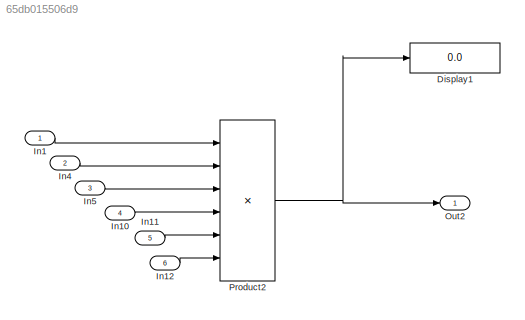
MODEL slx_65db015506d9
KIND model
CONFIG AbsTol = auto
CONFIG EnableMultiTasking = on
CONFIG FixedStep = 0.1
CONFIG MaxStep = auto
CONFIG MinStep = auto
CONFIG RelTol = 1e-3
CONFIG SampleTimeConstraint = Unconstrained
CONFIG Solver = FixedStepAuto
CONFIG SolverName = FixedStepAuto
CONFIG StartTime = 0.0
CONFIG StopTime = 10.0
WORKSPACE source: MAT-file member
WORKSPACE lustrec_slx_eps = 100
BLOCK [Display] Display1
  Decimation = 1
  Ports = [1]
BLOCK [Inport] In1
  IconDisplay = Port number
  OutDataTypeStr = double
  OutMax = 1.
  OutMin = -1.
  PortDimensions = [2 4]
BLOCK [Inport] In10
  IconDisplay = Port number
  OutDataTypeStr = double
  OutMax = 1.
  OutMin = -2.
  Port = 4
  PortDimensions = [3 3]
BLOCK [Inport] In11
  IconDisplay = Port number
  OutDataTypeStr = double
  OutMax = .5
  OutMin = -1.
  Port = 5
  PortDimensions = [3 2]
BLOCK [Inport] In12
  IconDisplay = Port number
  OutDataTypeStr = double
  OutMax = -1.
  OutMin = -3.
  Port = 6
  PortDimensions = [2 1]
BLOCK [Inport] In4
  IconDisplay = Port number
  OutDataTypeStr = double
  OutMax = 2.
  OutMin = -2.
  Port = 2
  PortDimensions = [4 2]
BLOCK [Inport] In5
  IconDisplay = Port number
  OutDataTypeStr = double
  OutMax = 1.
  OutMin = -1.
  Port = 3
  PortDimensions = [2 3]
BLOCK [Outport] Out2
  IconDisplay = Port number
BLOCK [Product] Product2
  InputSameDT = off
  Inputs = 6
  Multiplication = Matrix(*)
  OutDataTypeStr = Inherit: Inherit via internal rule
  Ports = [6, 1]
  SaturateOnIntegerOverflow = off
LINE In10:1 -> Product2:4
LINE In11:1 -> Product2:5
LINE In12:1 -> Product2:6
LINE In1:1 -> Product2:1
LINE In4:1 -> Product2:2
LINE In5:1 -> Product2:3
NET Product2:1 -> Display1:1, Out2:1
note: NET lines group one-source signal fan-out (src -> all destinations, sorted); 1:1 wires keep LINE
